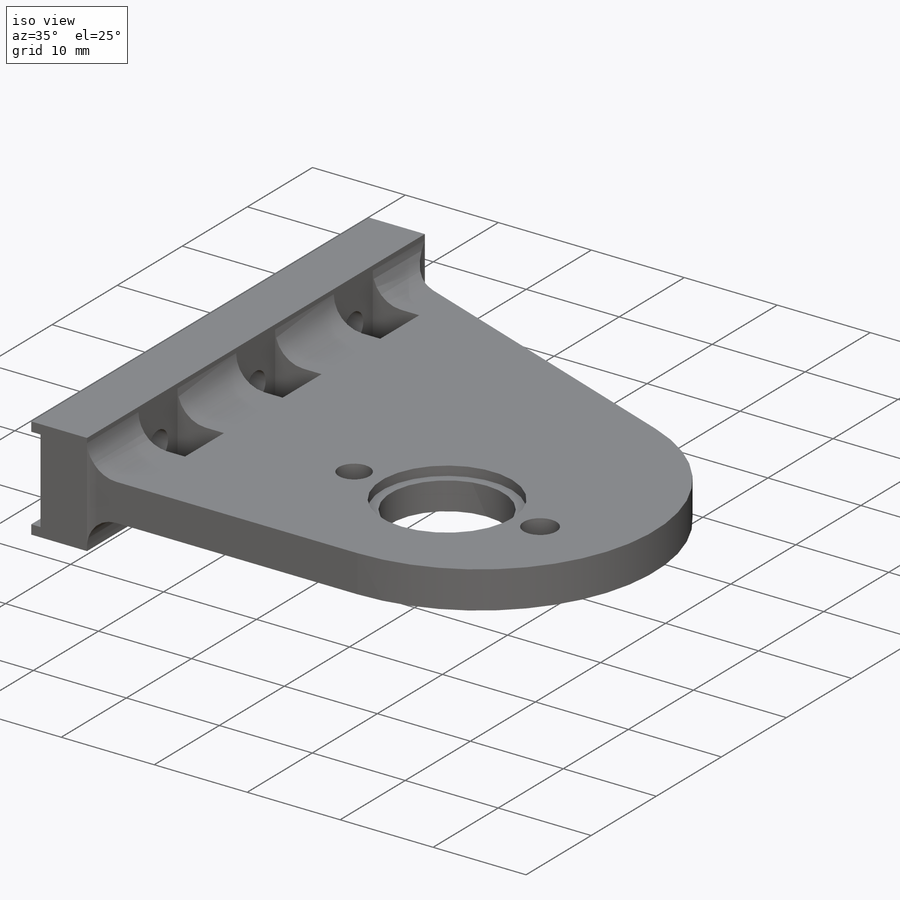
[diagram: iso view]
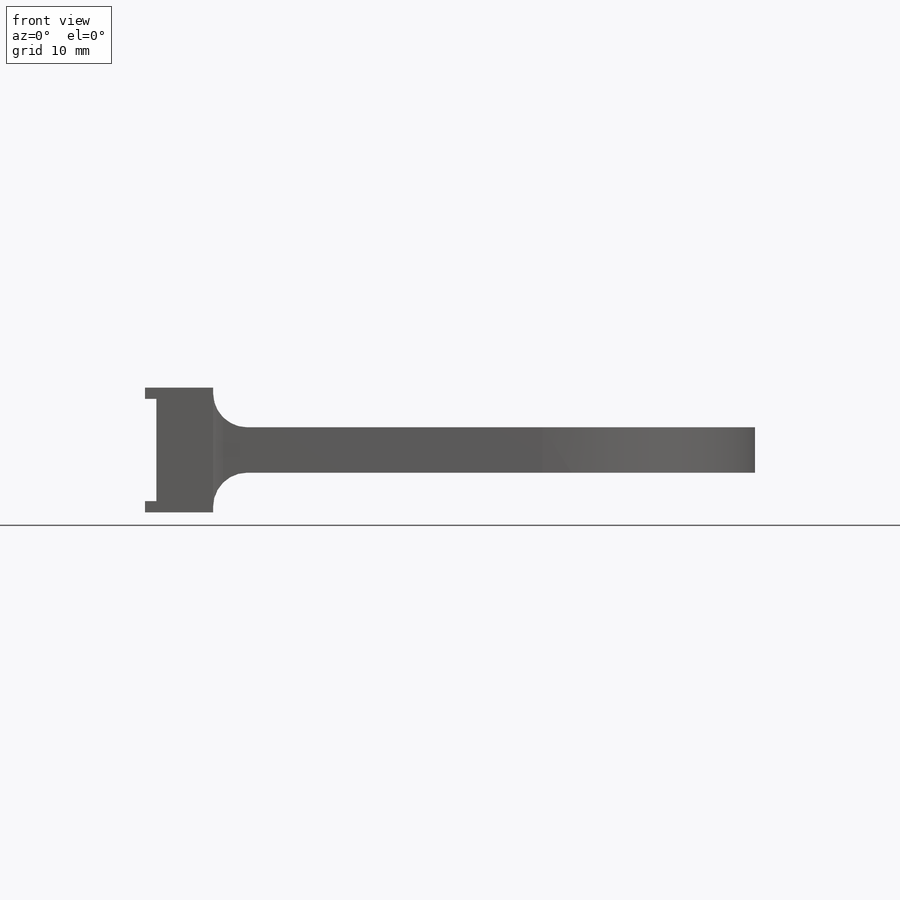
[diagram: front view]
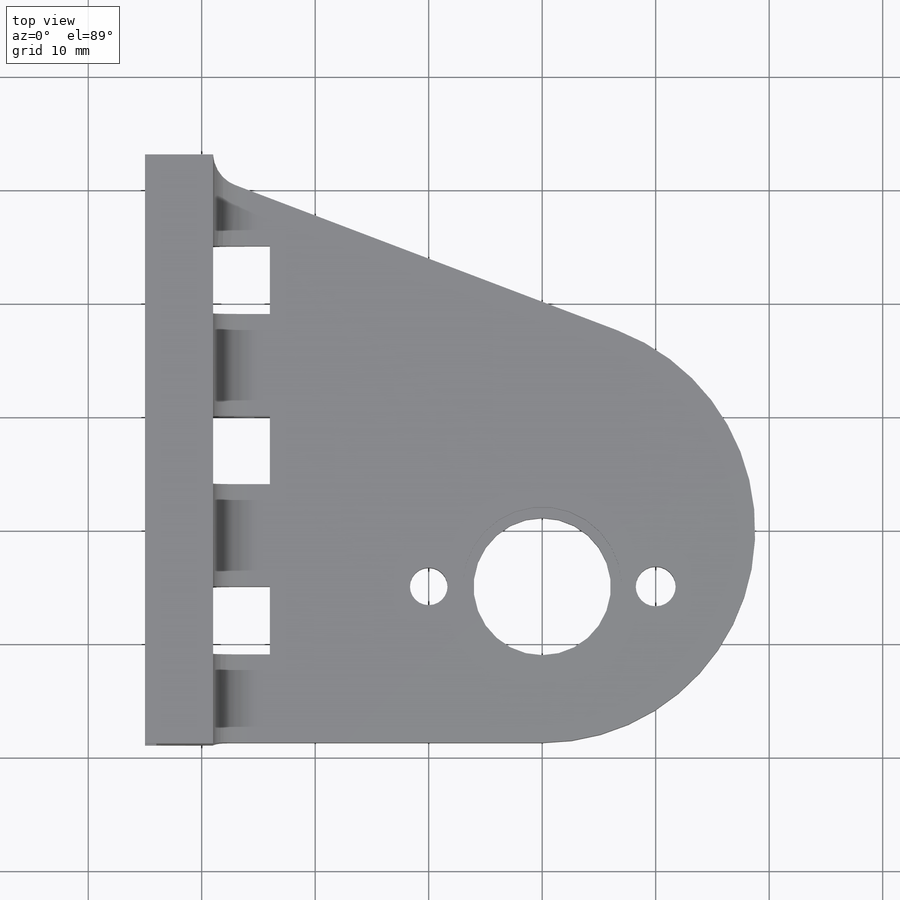
[diagram: top view]
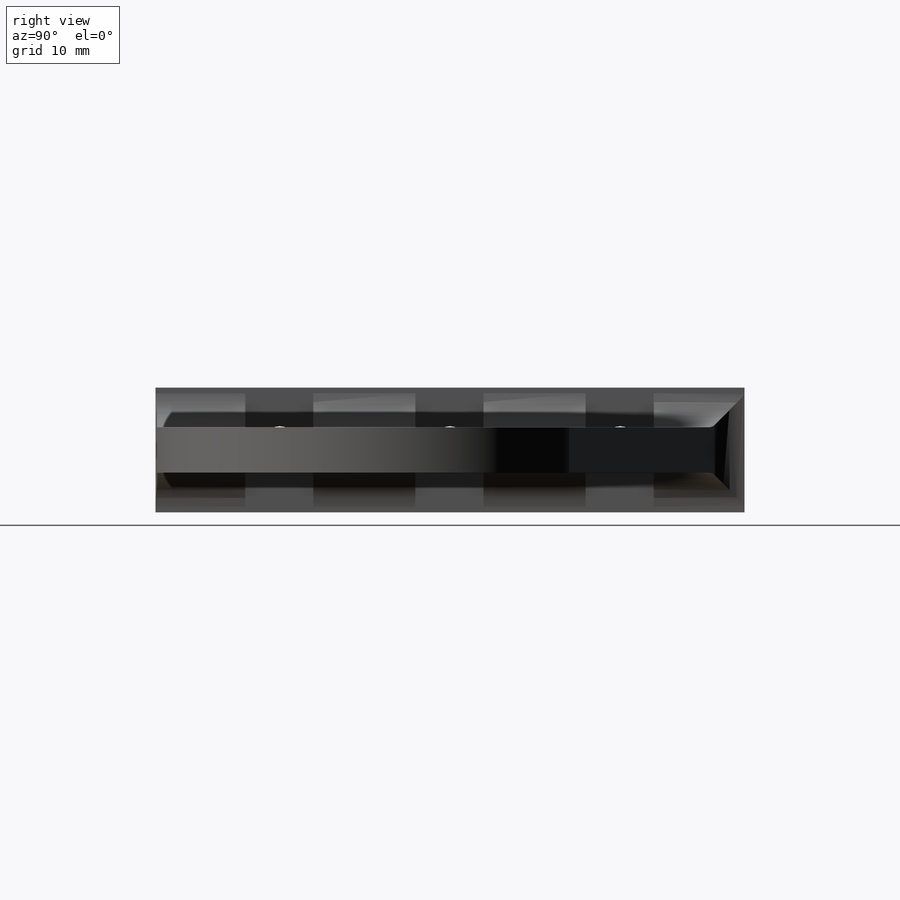
[diagram: right view]
SOLIDWORKS PART (.sldprt)
format: sldprt  version: not decoded by parser v0  size: 504,832 bytes
history: native  units: mm
features: sketch x18, cut_extrude x10, plane x7, extrude x6, material x1, hole x1, fillet x1 (+10 scaffold rows collapsed)
feature tree (54):
  scaffold x10  (default folders/planes/origin — collapsed)
  material  "材质 <未指定>"
  plane  "前视基准面"
  plane  "上视基准面"
  plane  "右视基准面"
  plane  "基准面4"
  sketch  "草图1"
  extrude  "凸台-拉伸1"  Depth=4mm
  sketch  "草图2"
  extrude  "凸台-拉伸2"  Depth=3.5mm
  sketch  "草图3"
  extrude  "凸台-拉伸3"  Depth=0.138368mm
  sketch  "草图4"
  extrude  "凸台-拉伸4"  Depth=12.922228mm
  sketch  "草图5"
  extrude  "凸台-拉伸5"  Depth=6mm
  sketch  "草图6"
  cut_extrude  "切除-拉伸1"  Depth=28.09941mm
  sketch  "草图7"
  cut_extrude  "切除-拉伸2"  Depth=0.90059mm
  plane  "基准面6"  Offset=11mm
  sketch  "草图9"  dims[D1=5.0mm]
  cut_extrude  "切除-拉伸4"  Depth=6mm
  plane  "基准面7"  Offset=4mm
  sketch  "草图10"
  cut_extrude  "切除-拉伸5"  Depth=6mm
  sketch  "草图11"
  extrude  "凸台-拉伸6"  Depth=3.5mm
  sketch  "草图12"
  cut_extrude  "切除-拉伸6"  Depth=51.906331mm
  hole  "Ø8.0 (8) 直径孔1"  [1 undecoded]
  sketch  "草图18"  dims[D1=5.0mm]
  sketch  "草图17"  dims[hole-wizard template sketch: 59 standard entries collapsed; hole parameters kept: c18.通孔孔直径=12.1mm c18.通孔孔深度=~7.500025mm c18.D1=0.0mm]
  fillet  "圆角1"  Radius=3mm
  sketch  "草图22"  dims[c1.D4=3.0mm c1.D6=3.0mm c1.D1=12.35mm c1.D2=12.5mm c1.D3=2.0mm c1.D5=2.0mm c2.D1=10.2mm c2.D2=10.3mm c3.D1=10.0mm c3.D2=10.0mm]
  cut_extrude  "切除-拉伸7"  Depth=10mm
  sketch  "草图24"  dims[D3=3.0mm D4=3.0mm D5=3.0mm D1=15.0mm D2=15.0mm]
  cut_extrude  "切除-拉伸8"  Depth=10mm
  plane  "基准面8"  Offset=21mm
  sketch  "草图29"
  cut_extrude  "切除-拉伸10"  Depth=5mm
  cut_extrude  "切除-拉伸11"  [1 undecoded]
  sketch  "草图29<2>"  dims[D1=6.0mm]
  sketch  "草图30"  dims[D1=14.0mm]
  cut_extrude  "切除-拉伸12"  Depth=1mm
decode coverage: 23 of 36 modeling features carry decoded parameters
note: ~ marks probable driven/reference dimensions
note: 2 parameter values undecoded
note: suppression state not decoded; provenance and decode notes live in map.json
